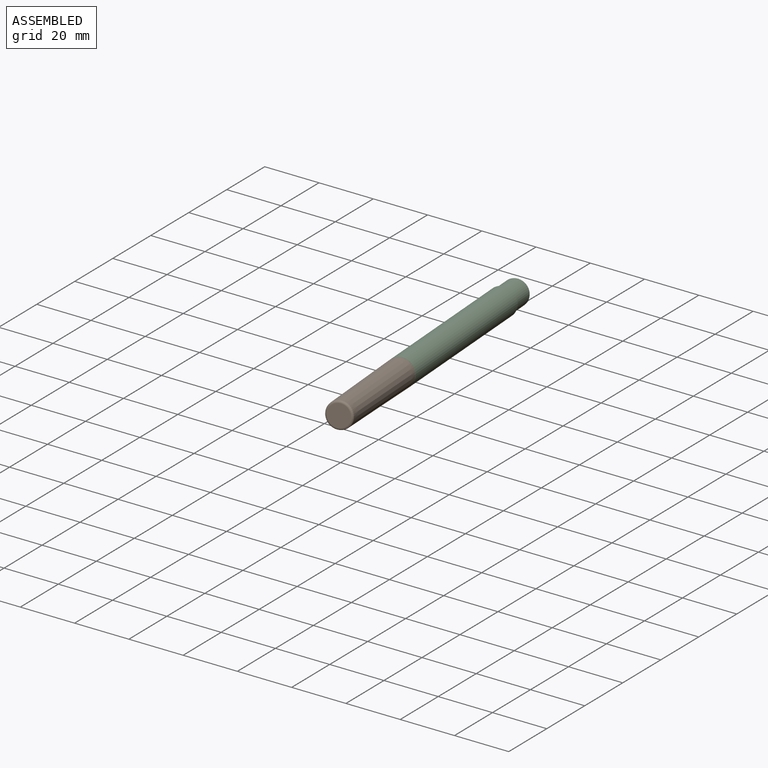
[diagram: assembled view]
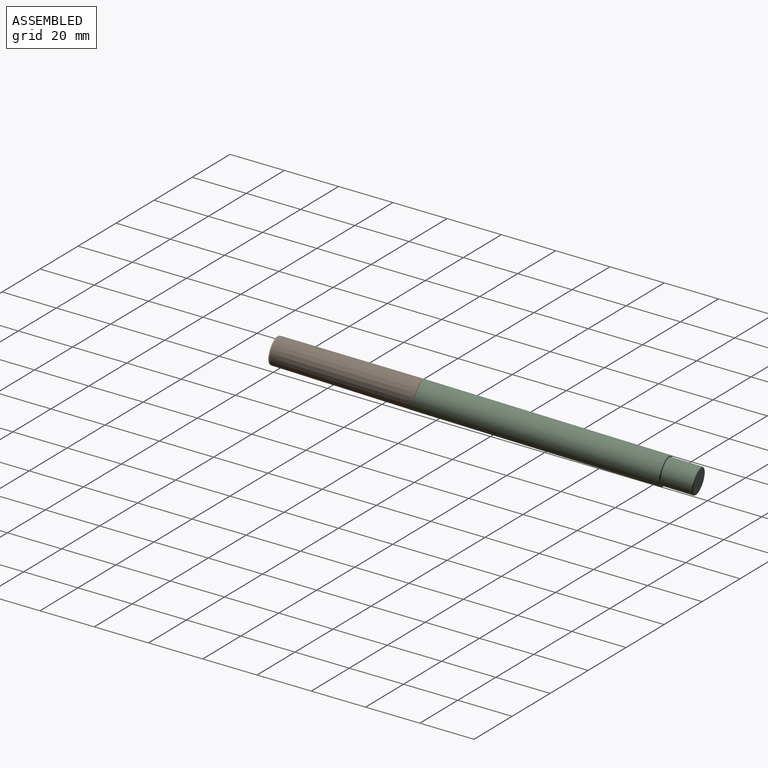
[diagram: assembled view, second angle]
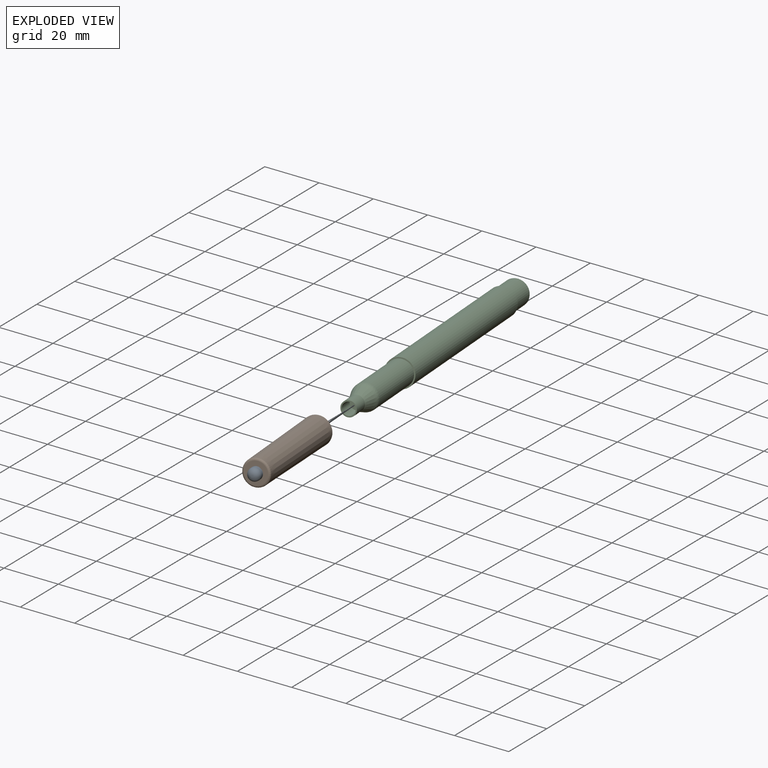
[diagram: exploded view]
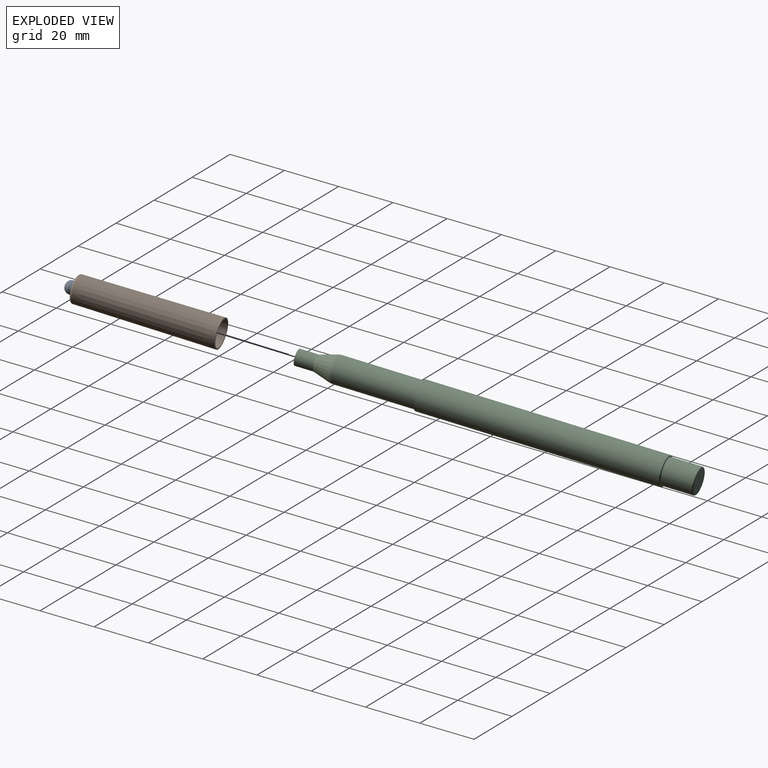
[diagram: exploded view, second angle]
ASSEMBLY  parts=3 mates=2
PART A: 4 faces, bbox 4.5x11.4x4.5 mm
  f0: cylinder r=2.25mm len=9.4mm, axis (0,1,0), area 132.7mm2, adj f2,f3
  f1: plane 0.43x0.43mm, normal (0,-1,0), area 0.1mm2, adj f3
  f2: plane 4.5x4.5mm, normal (0,1,0), area 15.9mm2, adj f0
  f3: torus R=0.22mm, axis (0,-1,0), area 30.3mm2, adj f0,f1
PART B: 6 faces, bbox 10.2x48.3x10.2 mm
  f0: plane 7.89x7.89mm, normal (0,-1,0), area 48.8mm2, adj f3
  f1: plane 10.16x10.16mm, normal (0,1,0), area 13.6mm2, adj f2,f4
  f2: cone r=4.7mm half-angle=0.5deg, axis (0,1,0), area 1460.3mm2, adj f1,f3
  f3: torus R=3.94mm, axis (0,-1,0), area 33.1mm2, adj f0,f2
  f4: cylinder r=4.64mm len=46.99mm, axis (0,1,0), area 1368.6mm2, adj f1,f5
  f5: plane 9.27x9.27mm, normal (0,1,0), area 67.5mm2, adj f4
PART C: 14 faces, bbox 10.2x132.6x10.2 mm
  f0: cylinder r=5.08mm len=81.03mm, axis (0,1,0), area 2586.2mm2, adj f2,f6
  f1: plane 9.65x9.65mm, normal (0,-1,0), area 7.2mm2, adj f3,f6
  f2: plane 10.16x10.16mm, normal (0,1,0), area 14.1mm2, adj f0,f7
  f3: cylinder r=4.58mm len=10.29mm, axis (0,1,0), area 296.3mm2, adj f1,f5
  f4: plane 8.41x8.41mm, normal (0,-1,0), area 55.5mm2, adj f5
  f5: torus R=4.2mm, axis (0,-1,0), area 16.7mm2, adj f3,f4
  f6: cone r=4.83mm half-angle=45deg, axis (0,1,0), area 11.2mm2, adj f0,f1
  f7: cylinder r=4.62mm len=27.38mm, axis (0,-1,0), area 794.2mm2, adj f2,f9
  f8: cone r=2.71mm half-angle=16.7deg, axis (0,-1,0), area 136.7mm2, adj f9,f10
  f9: torus R=0.81mm, axis (0,1,0), area 31.8mm2, adj f7,f8
  f10: cylinder r=2.71mm len=6.35mm, axis (0,-1,0), area 108.2mm2, adj f8,f11
  f11: plane 5.42x5.42mm, normal (0,1,0), area 7mm2, adj f10,f12
  f12: cylinder r=2.26mm len=6.35mm, axis (0,1,0), area 90.4mm2, adj f11,f13
  f13: plane 4.53x4.53mm, normal (0,1,0), area 16.1mm2, adj f12
PLACE A rot(axis=(-0.11,0.99,-0.07),178.3deg) t=(48.71,216.01,-116.8)mm
PLACE B rot(axis=(-0.52,-0.12,0.85),14.7deg) t=(41.45,249.1,-121.38)mm
PLACE C rot(axis=(0.02,-0.07,-1),167.6deg) t=(41.43,249.2,-121.39)mm
MATE slider B.f4 <-> C.f7  axis (-0.21,0.97,-0.13) through (41.45,249.1,-121.38)mm
MATE fastened A.f0 <-> C.f12  axis (-0.21,0.97,-0.13) through (48.71,216.01,-116.8)mm
